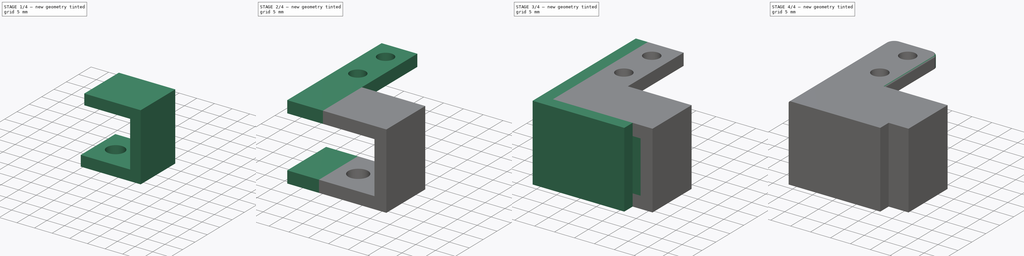
[diagram: build sequence overview — one tinted view per stage of 4, left to right]
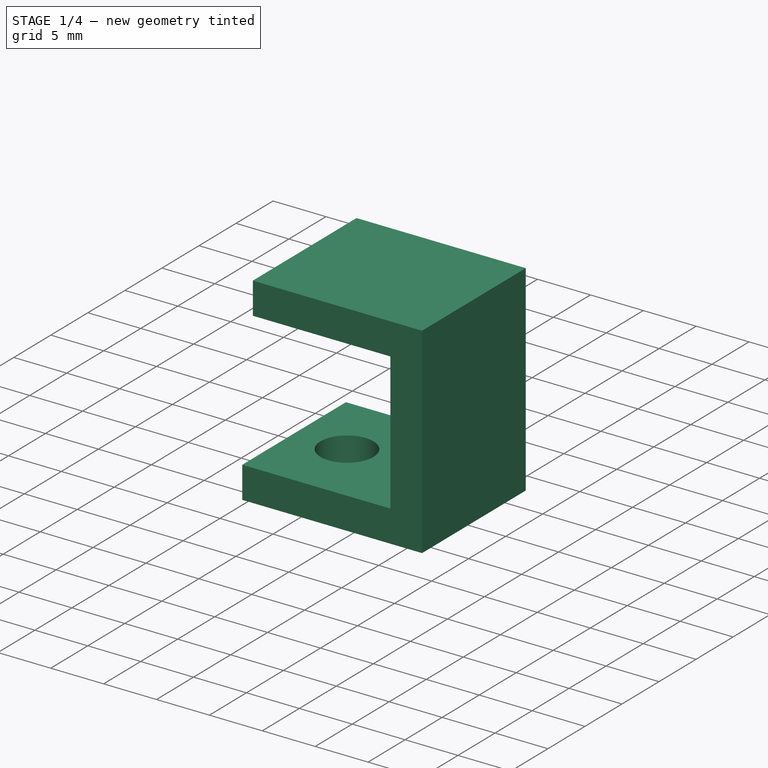
[diagram: stage 1 of 4 — iso view after this stage's code; geometry added in this stage tinted green]
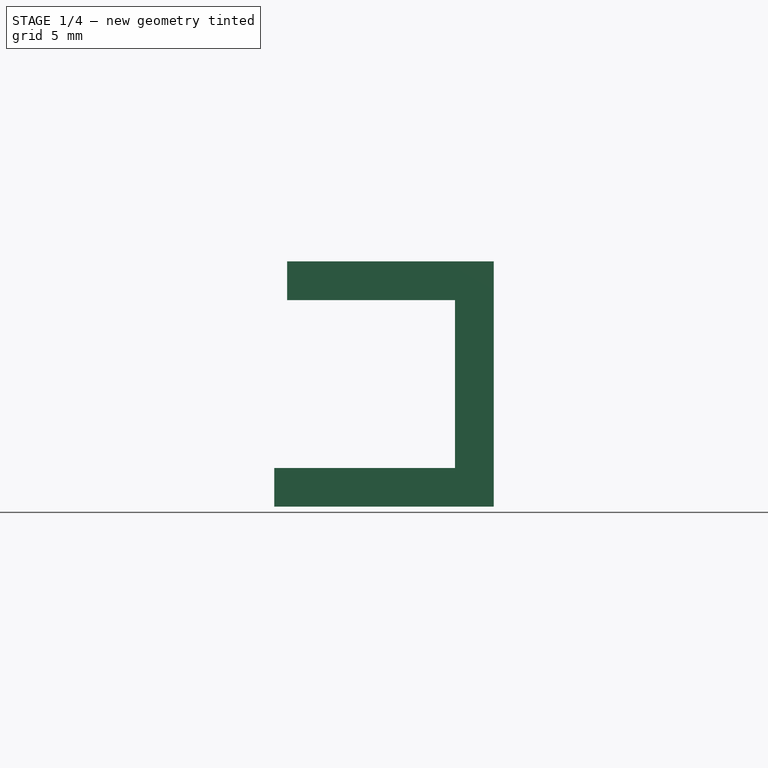
[diagram: stage 1 of 4 — front view after this stage's code; geometry added in this stage tinted green]
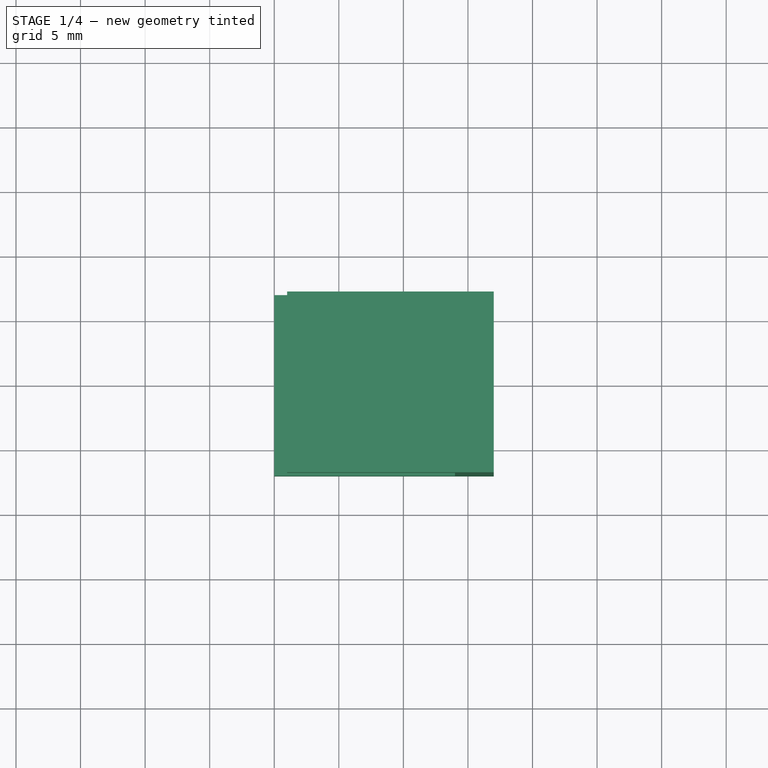
[diagram: stage 1 of 4 — top view after this stage's code; geometry added in this stage tinted green]
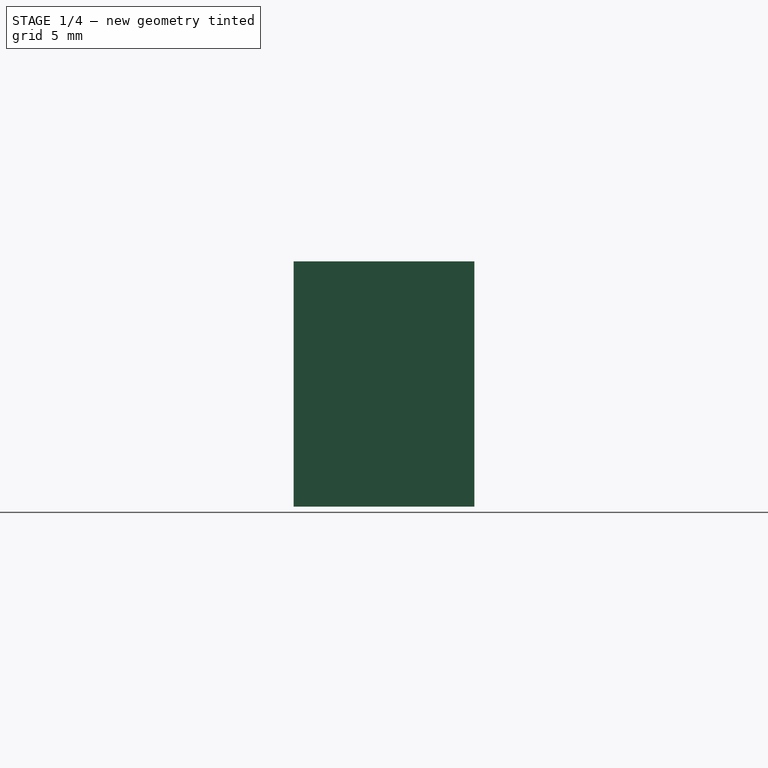
[diagram: stage 1 of 4 — right view after this stage's code; geometry added in this stage tinted green]
FCSTD DOCUMENT  (FreeCAD 0.19R24276 (Git))
Label: Servo_support_for_knife
License: All rights reserved
LicenseURL: http://en.wikipedia.org/wiki/All_rights_reserved
objects: Sketcher::SketchObject×9, PartDesign::Pad×8, PartDesign::Fillet×3, PartDesign::Pocket×1, PartDesign::Chamfer×1, PartDesign::Body×1
note: 36 computed .brp shape members not serialized (recipe doc carries the construction recipe); baked Part::Feature solids carry a one-line shape summary decoded from their .brp

FEATURE [Sketcher::SketchObject] Sketch  label="Sketch_17x16_d5"
  FullyConstrained = true
  MapMode = 5
  Support = -> [XY_Plane]
  sketch-geometry (6):
    g0: Circle CenterX=0 CenterY=0 CenterZ=0 NormalX=0 NormalY=0 NormalZ=1 AngleXU=0 Radius=2.5
    g1: Circle CenterX=0 CenterY=0 CenterZ=0 NormalX=0 NormalY=0 NormalZ=1 AngleXU=0 Radius=5
    g2: LineSegment StartX=-5 StartY=7 StartZ=0 EndX=12 EndY=7 EndZ=0
    g3: LineSegment StartX=12 StartY=7 StartZ=0 EndX=12 EndY=-7 EndZ=0
    g4: LineSegment StartX=12 StartY=-7 StartZ=0 EndX=-5 EndY=-7 EndZ=0
    g5: LineSegment StartX=-5 StartY=-7 StartZ=0 EndX=-5 EndY=7 EndZ=0
  constraints (16):
    c: Coincident(g0,g-1)
    c: Diameter(g0) = 5
    c: Coincident(g1,g-1)
    c: Diameter(g1) = 10
    c: Coincident(g2,g3)
    c: Coincident(g3,g4)
    c: Coincident(g4,g5)
    c: Coincident(g5,g2)
    c: Horizontal(g2)
    c: Horizontal(g4)
    c: Vertical(g3)
    c: Vertical(g5)
    c: DistanceX(g4,g-1) = 5
    c: DistanceX(g-1,g3) = 12
    c: DistanceY(g5,g5) = 14
    c: DistanceY(g4,g-1) = 7
FEATURE [PartDesign::Pad] Pad
  Direction = (1,1,1)
  Length = 3
  Length2 = 100
  Profile = -> Sketch
  Type = 0
FEATURE [Sketcher::SketchObject] Sketch001  label="Sketch001_14x3"
  FullyConstrained = true
  MapMode = 5
  Placement = pos=(0,0,3) rot=(0,0,1;0rad)
  Support = -> [Pad]
  sketch-geometry (4):
    g0: LineSegment StartX=9 StartY=7 StartZ=0 EndX=12 EndY=7 EndZ=0
    g1: LineSegment StartX=12 StartY=7 StartZ=0 EndX=12 EndY=-7 EndZ=0
    g2: LineSegment StartX=12 StartY=-7 StartZ=0 EndX=9 EndY=-7 EndZ=0
    g3: LineSegment StartX=9 StartY=-7 StartZ=0 EndX=9 EndY=7 EndZ=0
  constraints (12):
    c: Coincident(g0,g1)
    c: Coincident(g1,g2)
    c: Coincident(g2,g3)
    c: Coincident(g3,g0)
    c: Horizontal(g0)
    c: Horizontal(g2)
    c: Vertical(g1)
    c: Vertical(g3)
    c: DistanceY(g-1,g0) = 7
    c: DistanceY(g1,g1) = 14
    c: DistanceX(g2,g2) = 3
    c: DistanceX(g-1,g1) = 12
FEATURE [PartDesign::Pad] Pad001  label="Pad001_h16"
  BaseFeature = -> Pad
  Direction = (1,1,1)
  Length = 16
  Length2 = 100
  Profile = -> Sketch001
  Type = 0
FEATURE [Sketcher::SketchObject] Sketch002  label="Sketch002_14x3"
  FullyConstrained = true
  MapMode = 5
  Placement = pos=(9,0,0) rot=(0.57735,-0.57735,-0.57735;2.0944rad)
  Support = -> [Pad001]
  sketch-geometry (4):
    g0: LineSegment StartX=-7 StartY=19 StartZ=0 EndX=7 EndY=19 EndZ=0
    g1: LineSegment StartX=7 StartY=19 StartZ=0 EndX=7 EndY=16 EndZ=0
    g2: LineSegment StartX=7 StartY=16 StartZ=0 EndX=-7 EndY=16 EndZ=0
    g3: LineSegment StartX=-7 StartY=16 StartZ=0 EndX=-7 EndY=19 EndZ=0
  constraints (12):
    c: Coincident(g0,g1)
    c: Coincident(g1,g2)
    c: Coincident(g2,g3)
    c: Coincident(g3,g0)
    c: Horizontal(g0)
    c: Horizontal(g2)
    c: Vertical(g1)
    c: Vertical(g3)
    c: DistanceX(g0,g0) = 14
    c: DistanceX(g2,g-1) = 7
    c: DistanceY(g-1,g0) = 19
    c: DistanceY(g1,g1) = 3
FEATURE [PartDesign::Pad] Pad002  label="Pad002_h13"
  BaseFeature = -> Pad001
  Direction = (1,1,1)
  Length = 13
  Length2 = 100
  Profile = -> Sketch002
  Type = 0
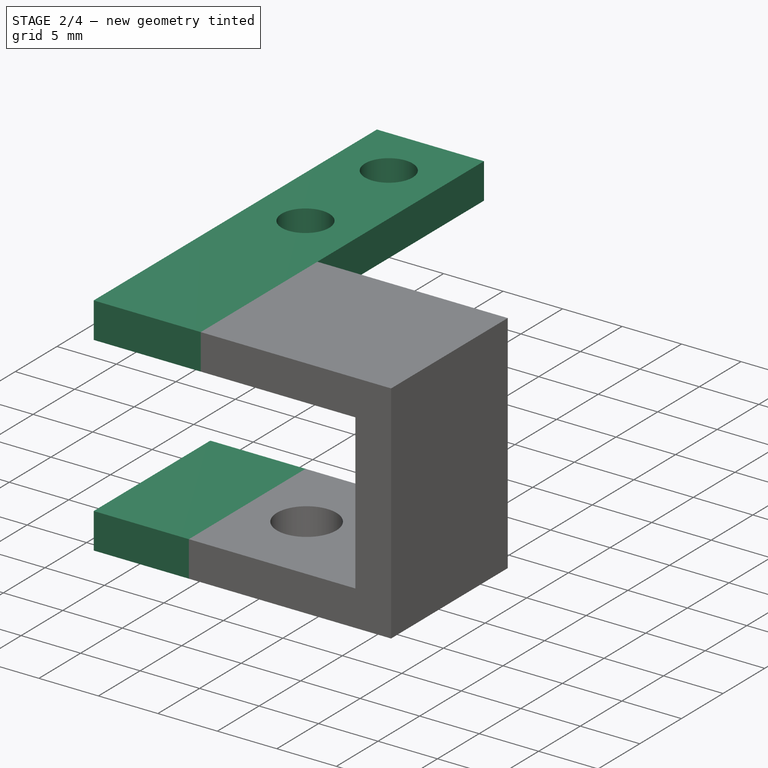
[diagram: stage 2 of 4 — iso view after this stage's code; geometry added in this stage tinted green]
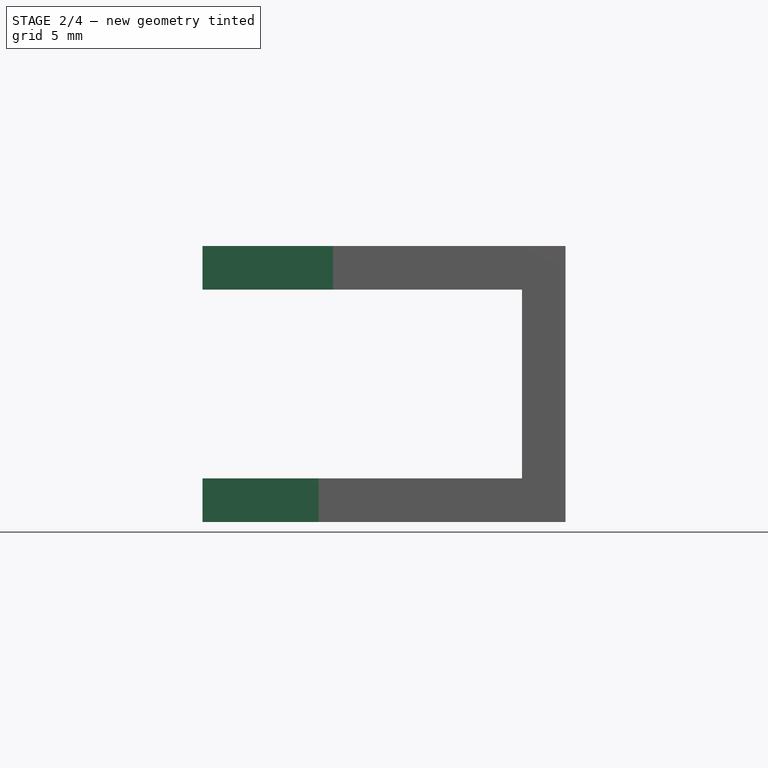
[diagram: stage 2 of 4 — front view after this stage's code; geometry added in this stage tinted green]
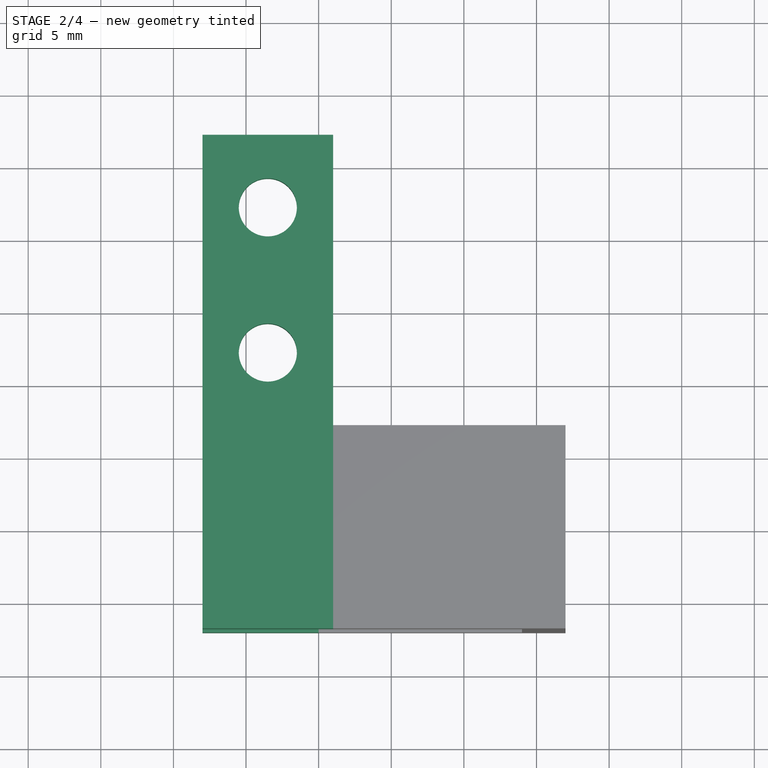
[diagram: stage 2 of 4 — top view after this stage's code; geometry added in this stage tinted green]
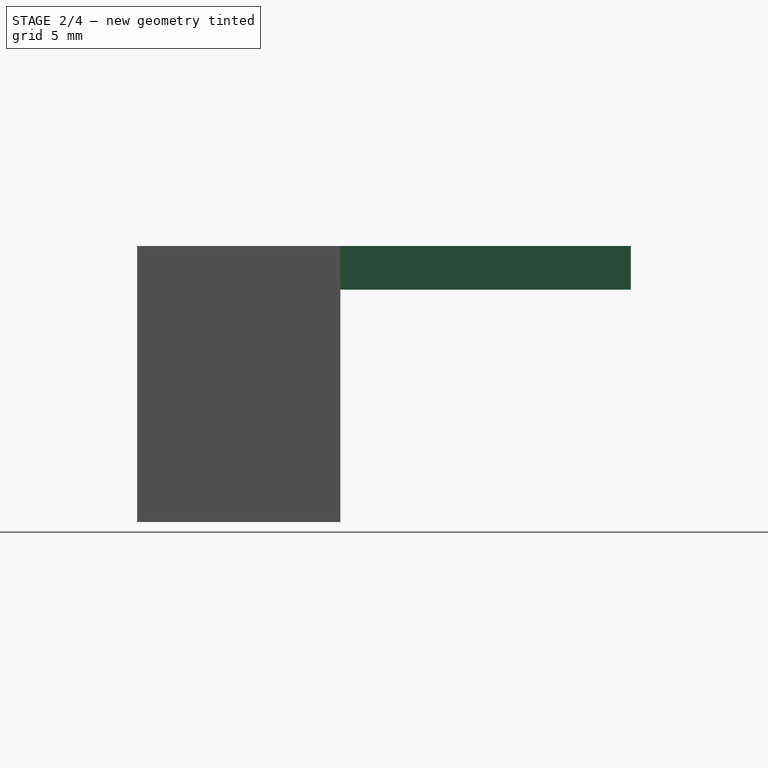
[diagram: stage 2 of 4 — right view after this stage's code; geometry added in this stage tinted green]
FEATURE [Sketcher::SketchObject] Sketch003  label="Sketch003_3x34"
  FullyConstrained = true
  MapMode = 5
  Placement = pos=(-4,0,0) rot=(0.57735,-0.57735,-0.57735;2.0944rad)
  Support = -> [Pad002]
  sketch-geometry (4):
    g0: LineSegment StartX=-27 StartY=19 StartZ=0 EndX=7 EndY=19 EndZ=0
    g1: LineSegment StartX=7 StartY=19 StartZ=0 EndX=7 EndY=16 EndZ=0
    g2: LineSegment StartX=7 StartY=16 StartZ=0 EndX=-27 EndY=16 EndZ=0
    g3: LineSegment StartX=-27 StartY=16 StartZ=0 EndX=-27 EndY=19 EndZ=0
  constraints (12):
    c: Coincident(g0,g1)
    c: Coincident(g1,g2)
    c: Coincident(g2,g3)
    c: Coincident(g3,g0)
    c: Horizontal(g0)
    c: Horizontal(g2)
    c: Vertical(g1)
    c: Vertical(g3)
    c: DistanceY(g-1,g2) = 16
    c: DistanceY(g3,g3) = 3
    c: DistanceX(g0,g0) = 34
    c: DistanceX(g-1,g1) = 7
FEATURE [PartDesign::Pad] Pad003  label="Pad003_h9"
  BaseFeature = -> Pad002
  Direction = (1,1,1)
  Length = 9
  Length2 = 100
  Profile = -> Sketch003
  Type = 0
FEATURE [Sketcher::SketchObject] Sketch004  label="Sketch004_3x14"
  FullyConstrained = true
  MapMode = 5
  Placement = pos=(-5,0,0) rot=(0.57735,-0.57735,-0.57735;2.0944rad)
  Support = -> [Pad003]
  sketch-geometry (4):
    g0: LineSegment StartX=-7 StartY=3 StartZ=0 EndX=7 EndY=3 EndZ=0
    g1: LineSegment StartX=7 StartY=3 StartZ=0 EndX=7 EndY=0 EndZ=0
    g2: LineSegment StartX=7 StartY=0 StartZ=0 EndX=-7 EndY=0 EndZ=0
    g3: LineSegment StartX=-7 StartY=0 StartZ=0 EndX=-7 EndY=3 EndZ=0
  constraints (12):
    c: Coincident(g0,g1)
    c: Coincident(g1,g2)
    c: Coincident(g2,g3)
    c: Coincident(g3,g0)
    c: Horizontal(g0)
    c: Horizontal(g2)
    c: Vertical(g1)
    c: Vertical(g3)
    c: Horizontal(g-1,g2)
    c: DistanceX(g2,g2) = 14
    c: DistanceX(g2,g-1) = 7
    c: DistanceY(g1,g1) = 3
FEATURE [PartDesign::Pad] Pad004  label="Pad004_h8"
  BaseFeature = -> Pad003
  Direction = (1,1,1)
  Length = 8
  Length2 = 100
  Profile = -> Sketch004
  Type = 0
FEATURE [Sketcher::SketchObject] Sketch006  label="Sketch006_d4_x2"
  FullyConstrained = false
  MapMode = 5
  Placement = pos=(0,0,19) rot=(0,0,1;0rad)
  sketch-geometry (6):
    g0: Circle CenterX=-8.5 CenterY=22 CenterZ=0 NormalX=0 NormalY=0 NormalZ=1 AngleXU=0 Radius=2
    g1: Circle CenterX=-8.5 CenterY=12 CenterZ=0 NormalX=0 NormalY=0 NormalZ=1 AngleXU=0 Radius=2
    g2: LineSegment StartX=-4 StartY=7 StartZ=0 EndX=14.987 EndY=7 EndZ=0
    g3: LineSegment StartX=14.987 StartY=7 StartZ=0 EndX=14.987 EndY=27 EndZ=0
    g4: LineSegment StartX=14.987 StartY=27 StartZ=0 EndX=-4 EndY=27 EndZ=0
    g5: LineSegment StartX=-4 StartY=27 StartZ=0 EndX=-4 EndY=7 EndZ=0
  constraints (17):
    c: Vertical(g1,g0)
    c: Diameter(g1) = 4
    c: Equal(g1,g0)
    c: Coincident(g2,g3)
    c: Coincident(g3,g4)
    c: Coincident(g4,g5)
    c: Coincident(g5,g2)
    c: Horizontal(g2)
    c: Horizontal(g4)
    c: Vertical(g3)
    c: Vertical(g5)
    c: DistanceY(g3,g3) = 20
    c: DistanceY(g-1,g2) = 7
    c: DistanceX(g2,g-1) = 4
    c: DistanceX(g0,g4) = 4.5
    c: DistanceY(g1,g0) = 10
    c: DistanceY(g2,g1) = 5
FEATURE [PartDesign::Pocket] Pocket
  BaseFeature = -> Pad004
  Length = 5
  Length2 = 100
  Profile = -> Sketch006
  Type = 1
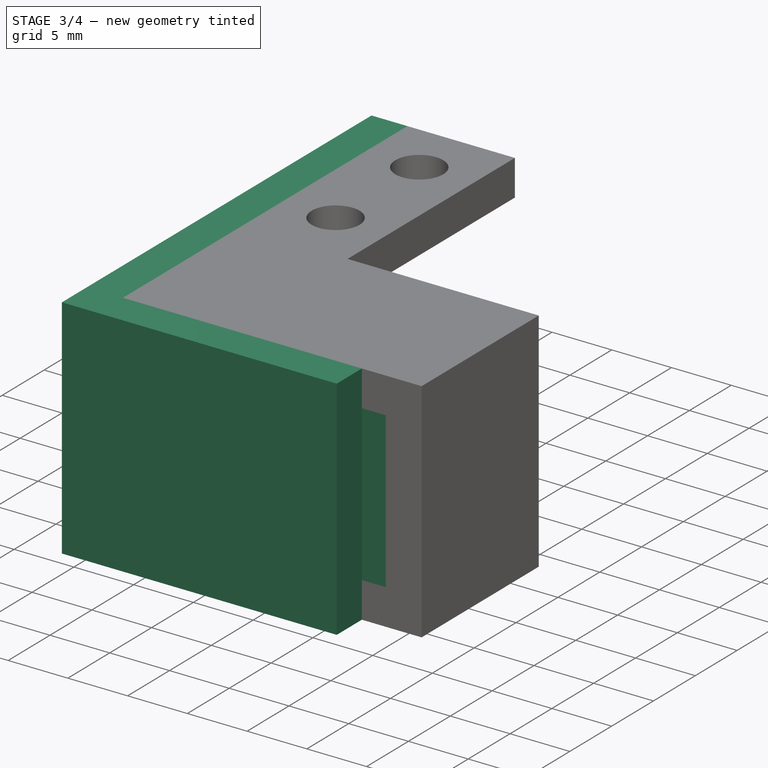
[diagram: stage 3 of 4 — iso view after this stage's code; geometry added in this stage tinted green]
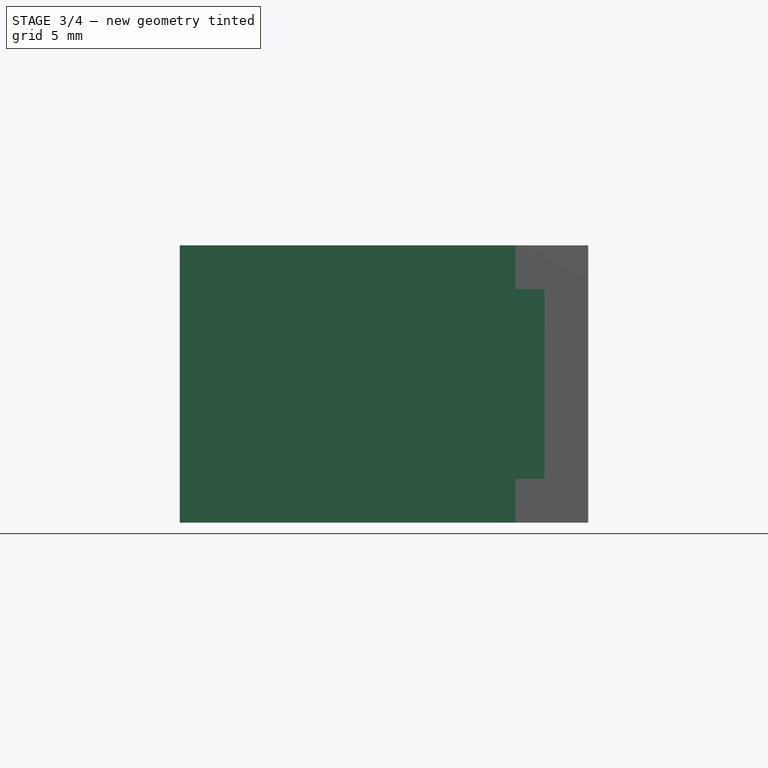
[diagram: stage 3 of 4 — front view after this stage's code; geometry added in this stage tinted green]
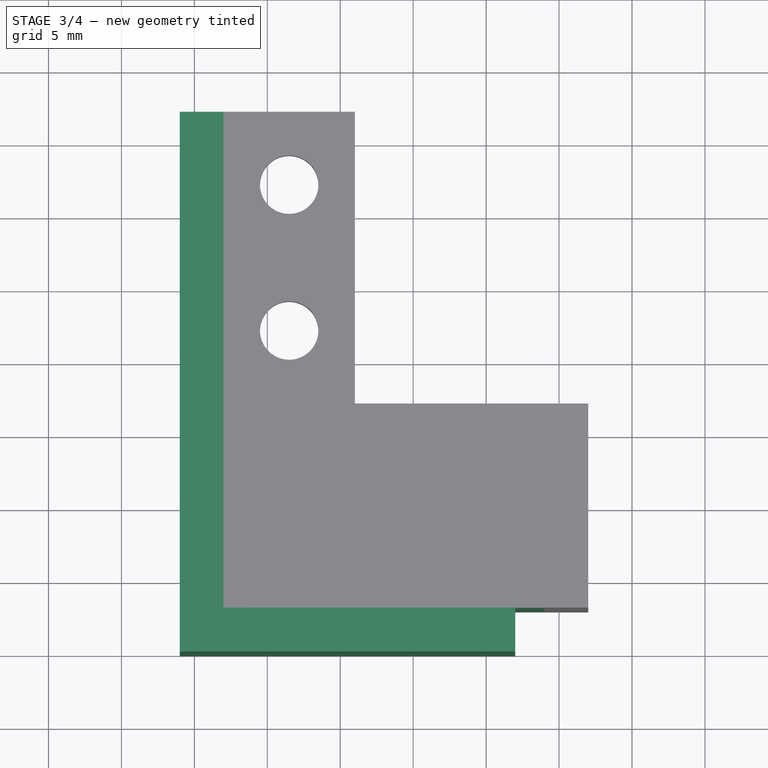
[diagram: stage 3 of 4 — top view after this stage's code; geometry added in this stage tinted green]
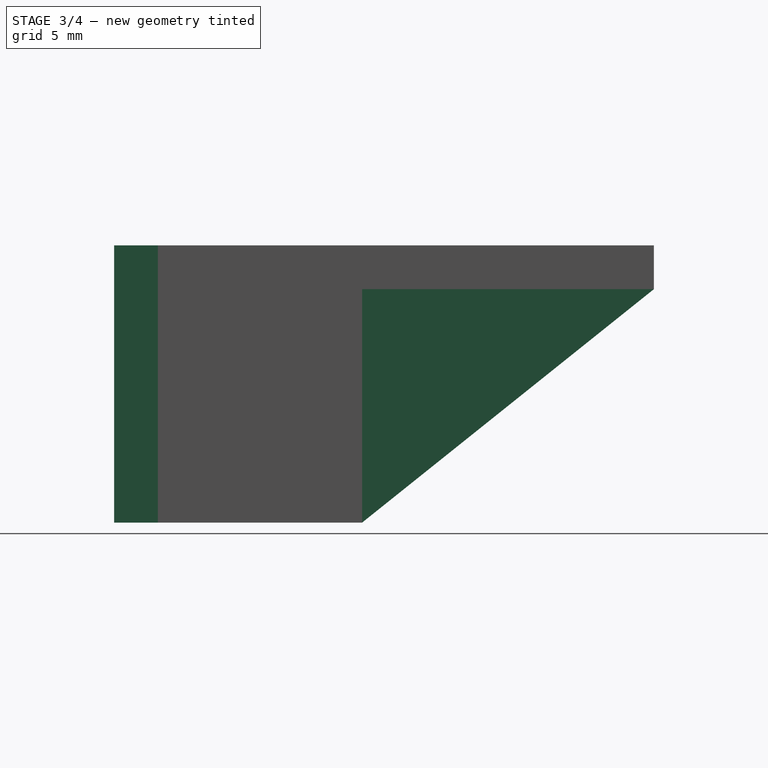
[diagram: stage 3 of 4 — right view after this stage's code; geometry added in this stage tinted green]
FEATURE [Sketcher::SketchObject] Sketch007  label="Sketch007_34x19"
  FullyConstrained = true
  MapMode = 5
  Placement = pos=(-13,0,0) rot=(0.57735,-0.57735,-0.57735;2.0944rad)
  Support = -> [Pocket]
  sketch-geometry (7):
    g0: LineSegment StartX=-27 StartY=19 StartZ=0 EndX=7 EndY=19 EndZ=0
    g1: LineSegment StartX=-7 StartY=16 StartZ=0 EndX=-27 EndY=16 EndZ=0
    g2: LineSegment StartX=-27 StartY=16 StartZ=0 EndX=-27 EndY=19 EndZ=0
    g3: LineSegment StartX=7 StartY=19 StartZ=0 EndX=7 EndY=0 EndZ=0
    g4: LineSegment StartX=7 StartY=0 StartZ=0 EndX=-7 EndY=0 EndZ=0
    g5: LineSegment StartX=-7 StartY=0 StartZ=0 EndX=-7 EndY=16 EndZ=0
    g6: LineSegment StartX=-27 StartY=16 StartZ=0 EndX=-7 EndY=0 EndZ=0
  constraints (20):
    c: Coincident(g1,g2)
    c: Coincident(g2,g0)
    c: Horizontal(g0)
    c: Horizontal(g1)
    c: Vertical(g2)
    c: Coincident(g3,g4)
    c: Coincident(g4,g5)
    c: Horizontal(g4)
    c: Vertical(g3)
    c: Vertical(g5)
    c: Horizontal(g4,g-1)
    c: DistanceY(g3,g3) = 19
    c: DistanceX(g4,g-1) = 7
    c: DistanceX(g4,g3) = 14
    c: DistanceX(g0,g0) = 34
    c: DistanceY(g2,g2) = 3
    c: Coincident(g1,g5)
    c: Coincident(g0,g3)
    c: Coincident(g6,g1)
    c: Coincident(g6,g4)
FEATURE [PartDesign::Pad] Pad005  label="Pad005_h3"
  BaseFeature = -> Pocket
  Direction = (1,1,1)
  Length = 3
  Length2 = 100
  Profile = -> Sketch007
  Type = 0
FEATURE [Sketcher::SketchObject] Sketch008  label="Sketch008_16x19"
  FullyConstrained = false
  MapMode = 5
  Placement = pos=(0,-7,0) rot=(1,0,0;1.5708rad)
  Support = -> [Pad005]
  sketch-geometry (5):
    g0: LineSegment StartX=-16 StartY=19 StartZ=0 EndX=7 EndY=19 EndZ=0
    g1: LineSegment StartX=7 StartY=19 StartZ=0 EndX=7 EndY=0 EndZ=0
    g2: LineSegment StartX=7 StartY=0 StartZ=0 EndX=-16 EndY=0 EndZ=0
    g3: LineSegment StartX=-16 StartY=0 StartZ=0 EndX=-16 EndY=19 EndZ=0
    g4: LineSegment StartX=12 StartY=16.5997 StartZ=0 EndX=12 EndY=0 EndZ=0
  constraints (15):
    c: Coincident(g0,g1)
    c: Coincident(g1,g2)
    c: Coincident(g2,g3)
    c: Coincident(g3,g0)
    c: Horizontal(g0)
    c: Horizontal(g2)
    c: Vertical(g1)
    c: Vertical(g3)
    c: PointOnObject(g1,g-1)
    c: DistanceX(g2,g-1) = 16
    c: DistanceY(g3,g3) = 19
    c: PointOnObject(g4,g-1)
    c: Vertical(g4)
    c: DistanceX(g-1,g4) = 12
    c: DistanceX(g1,g4) = 5
FEATURE [PartDesign::Pad] Pad006  label="Pad006_h3"
  BaseFeature = -> Pad005
  Direction = (1,1,1)
  Length = 3
  Length2 = 100
  Profile = -> Sketch008
  Type = 0
FEATURE [Sketcher::SketchObject] Sketch009  label="Sketch009_3x19"
  FullyConstrained = true
  MapMode = 5
  Placement = pos=(9,0,0) rot=(0.57735,-0.57735,-0.57735;2.0944rad)
  Support = -> [Pad006]
  sketch-geometry (4):
    g0: LineSegment StartX=4 StartY=19 StartZ=0 EndX=7 EndY=19 EndZ=0
    g1: LineSegment StartX=7 StartY=19 StartZ=0 EndX=7 EndY=0 EndZ=0
    g2: LineSegment StartX=7 StartY=0 StartZ=0 EndX=4 EndY=0 EndZ=0
    g3: LineSegment StartX=4 StartY=0 StartZ=0 EndX=4 EndY=19 EndZ=0
  constraints (12):
    c: Coincident(g0,g1)
    c: Coincident(g1,g2)
    c: Coincident(g2,g3)
    c: Coincident(g3,g0)
    c: Horizontal(g0)
    c: Horizontal(g2)
    c: Vertical(g1)
    c: Vertical(g3)
    c: PointOnObject(g1,g-1)
    c: DistanceX(g-1,g1) = 7
    c: DistanceX(g2,g2) = 3
    c: DistanceY(g1,g1) = 19
FEATURE [PartDesign::Pad] Pad007  label="Pad007_h4"
  BaseFeature = -> Pad006
  Direction = (1,1,1)
  Length = 4
  Length2 = 100
  Profile = -> Sketch009
  Type = 0
FEATURE [PartDesign::Chamfer] Chamfer
  Angle = 45
  Base = -> Pad007 [Edge50]
  BaseFeature = -> Pad007
  ChamferType = 0
  FlipDirection = false
  Size = 2.9
  Size2 = 1
  SupportTransform = false
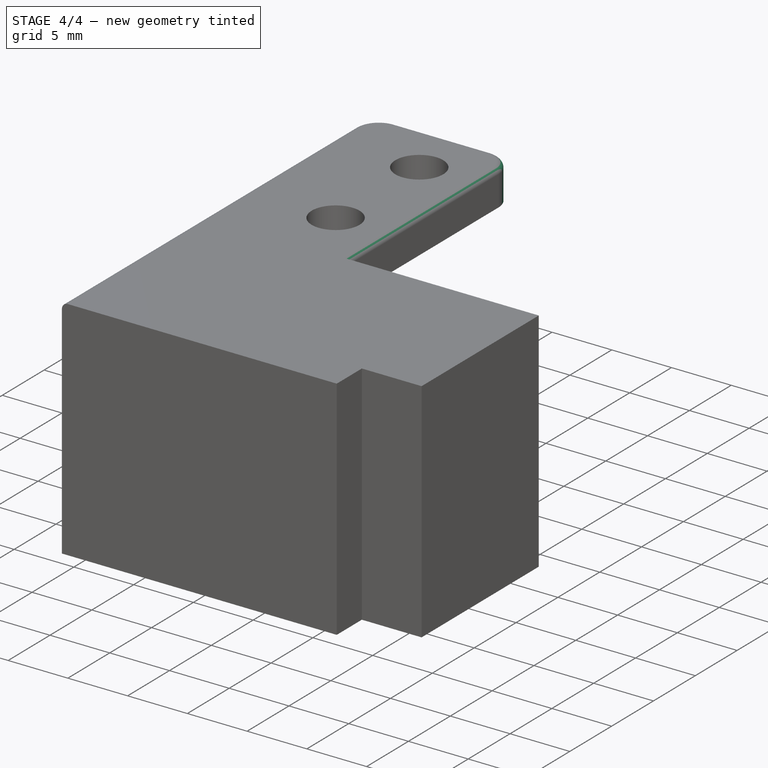
[diagram: stage 4 of 4 — iso view after this stage's code; geometry added in this stage tinted green]
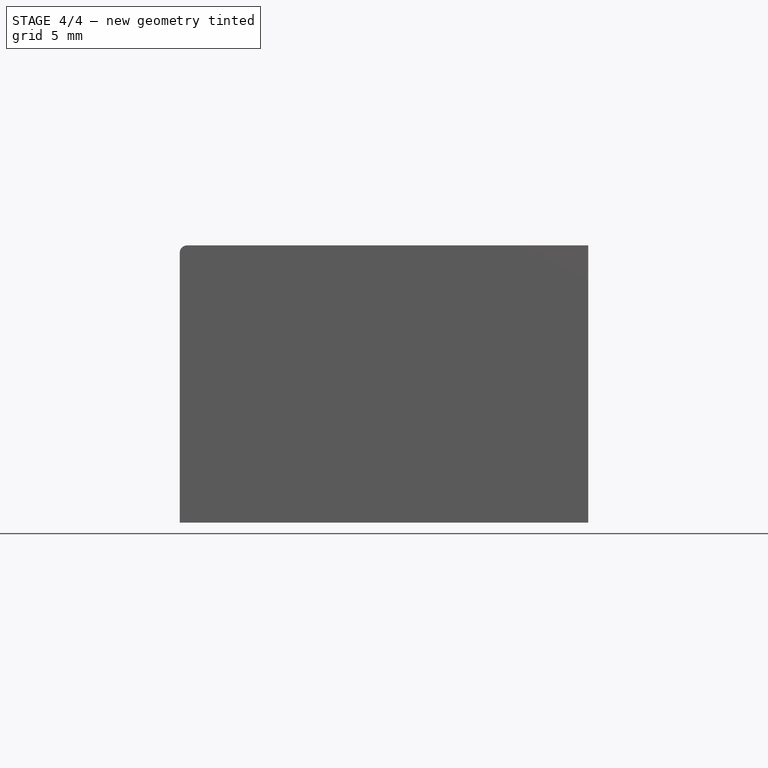
[diagram: stage 4 of 4 — front view after this stage's code; geometry added in this stage tinted green]
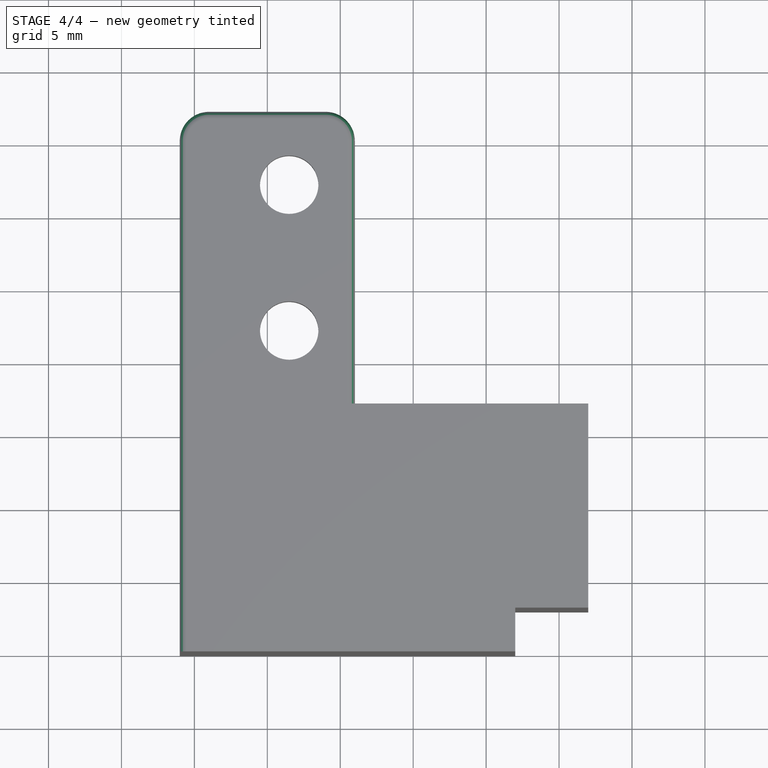
[diagram: stage 4 of 4 — top view after this stage's code; geometry added in this stage tinted green]
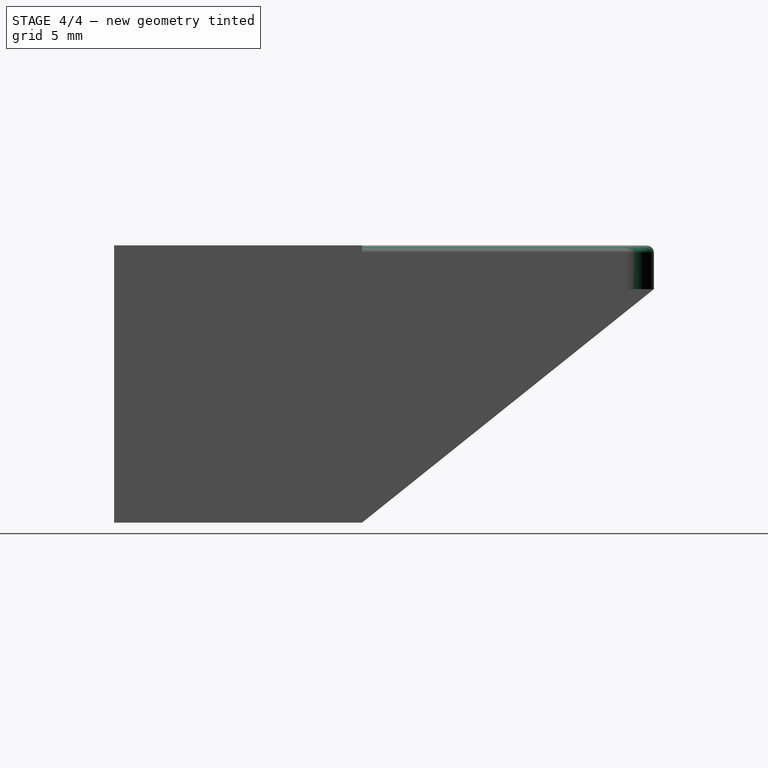
[diagram: stage 4 of 4 — right view after this stage's code; geometry added in this stage tinted green]
FEATURE [PartDesign::Fillet] Fillet
  Base = -> Chamfer [Edge57]
  BaseFeature = -> Chamfer
  Radius = 2
  SupportTransform = false
FEATURE [PartDesign::Fillet] Fillet001
  Base = -> Fillet [Edge48]
  BaseFeature = -> Fillet
  Radius = 2
  SupportTransform = false
FEATURE [PartDesign::Fillet] Fillet002
  Base = -> Fillet001 [Edge15]
  BaseFeature = -> Fillet001
  Radius = 0.5
  SupportTransform = false
FEATURE [PartDesign::Body] Body
  Group = -> [Sketch,Pad,Sketch001,Pad001,Sketch002,Pad002,Sketch003,Pad003,Sketch004,Pad004,Sketch006,Pocket,Sketch007,Pad005,Sketch008,Pad006,Sketch009,Pad007,Chamfer,Fillet,Fillet001,Fillet002]
  Origin = -> Origin
  Tip = -> Fillet002
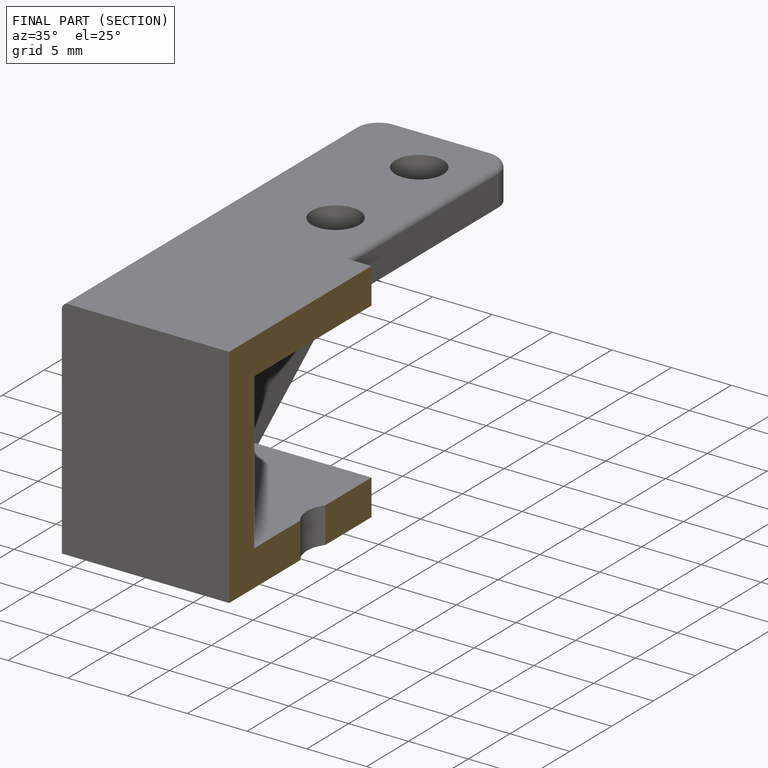
[diagram: finished part — half-section view (interior)]
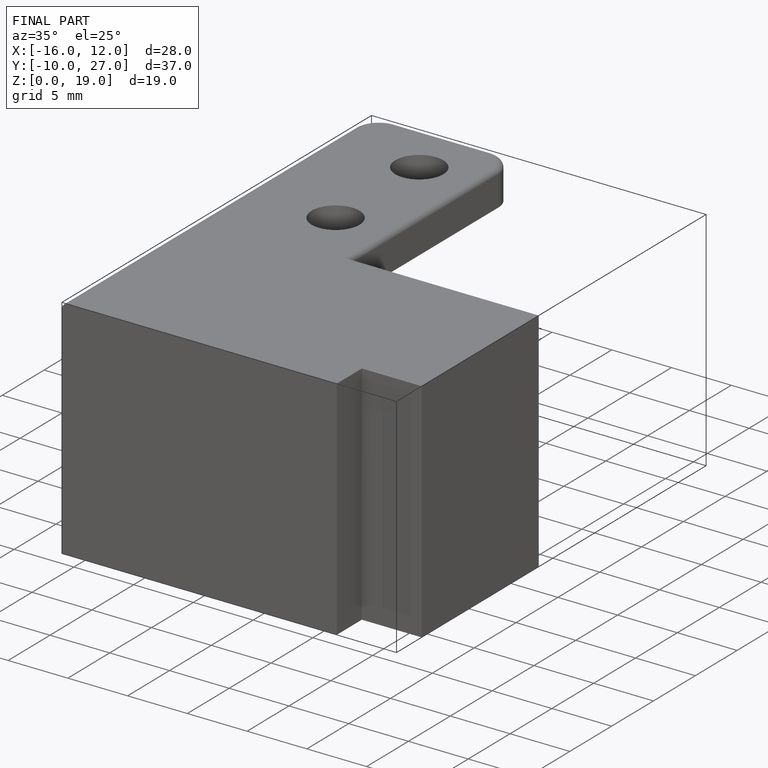
[diagram: finished part — iso view with bounding-box wireframe]
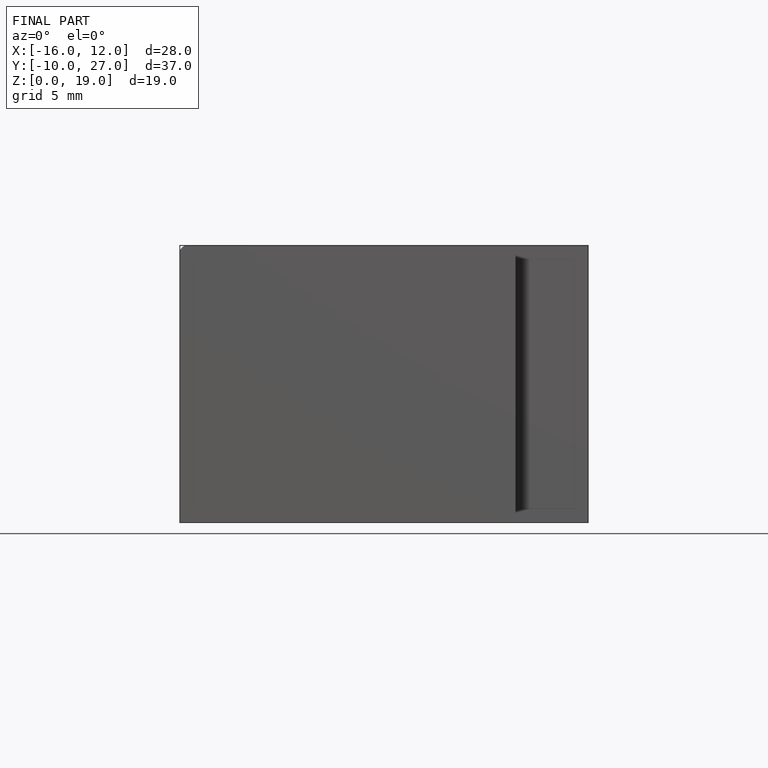
[diagram: finished part — front view with bounding-box wireframe]
